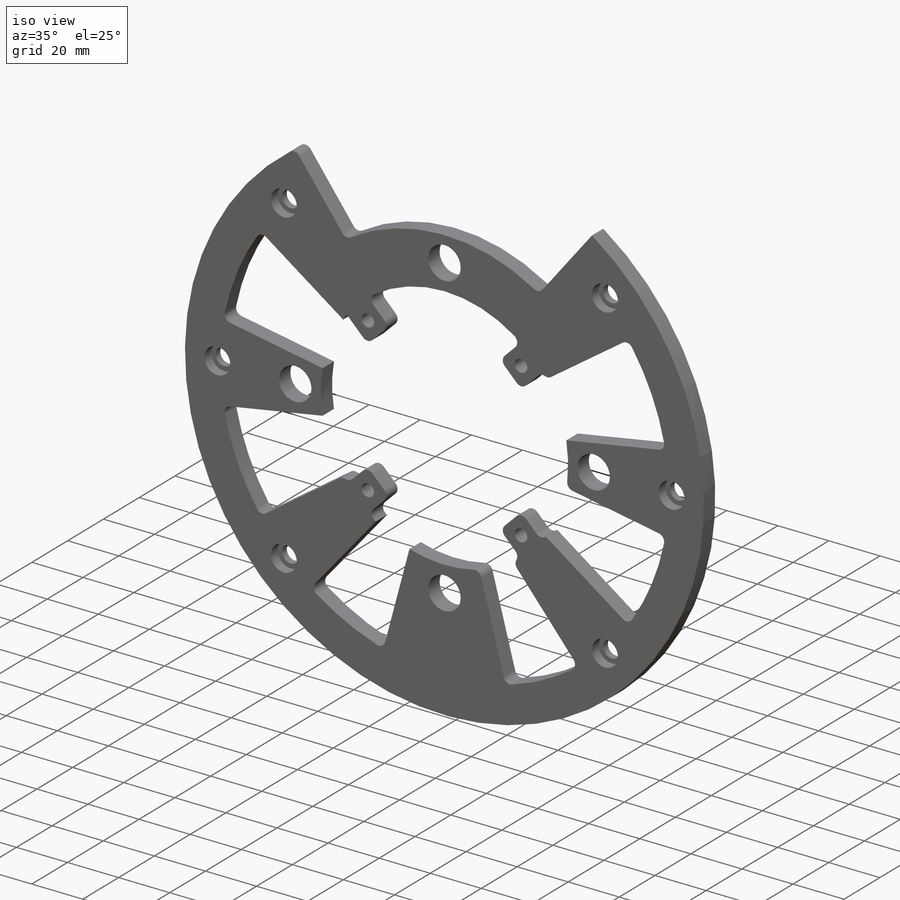
[diagram: iso view]
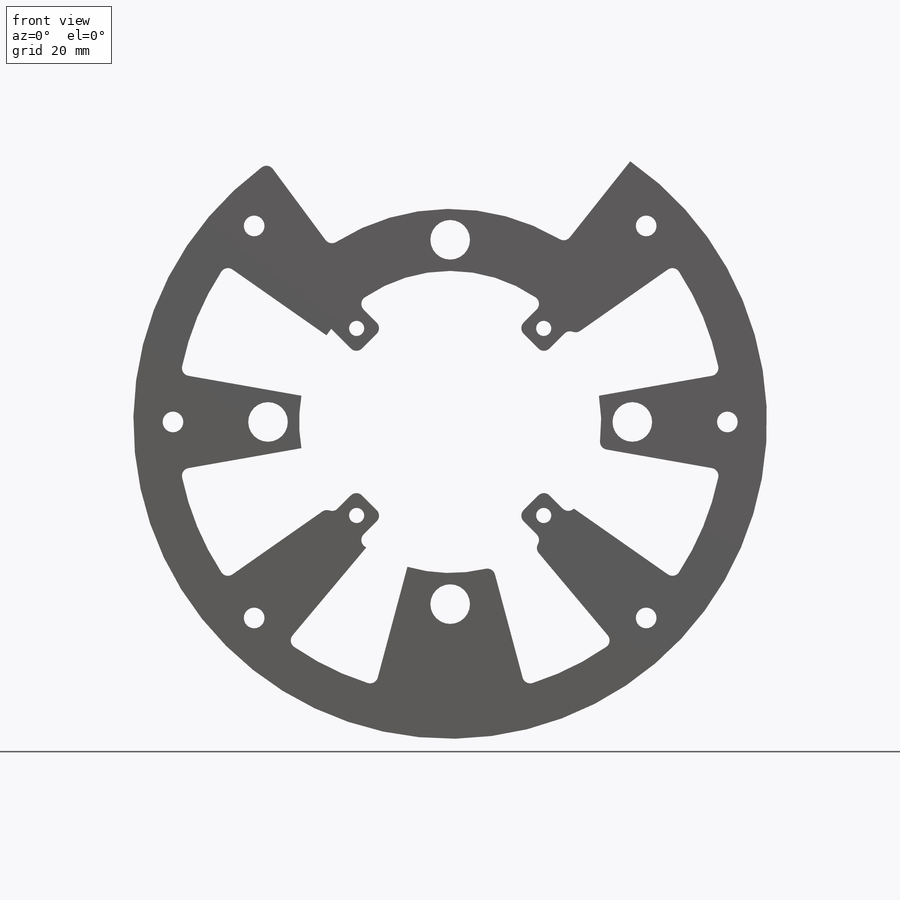
[diagram: front view]
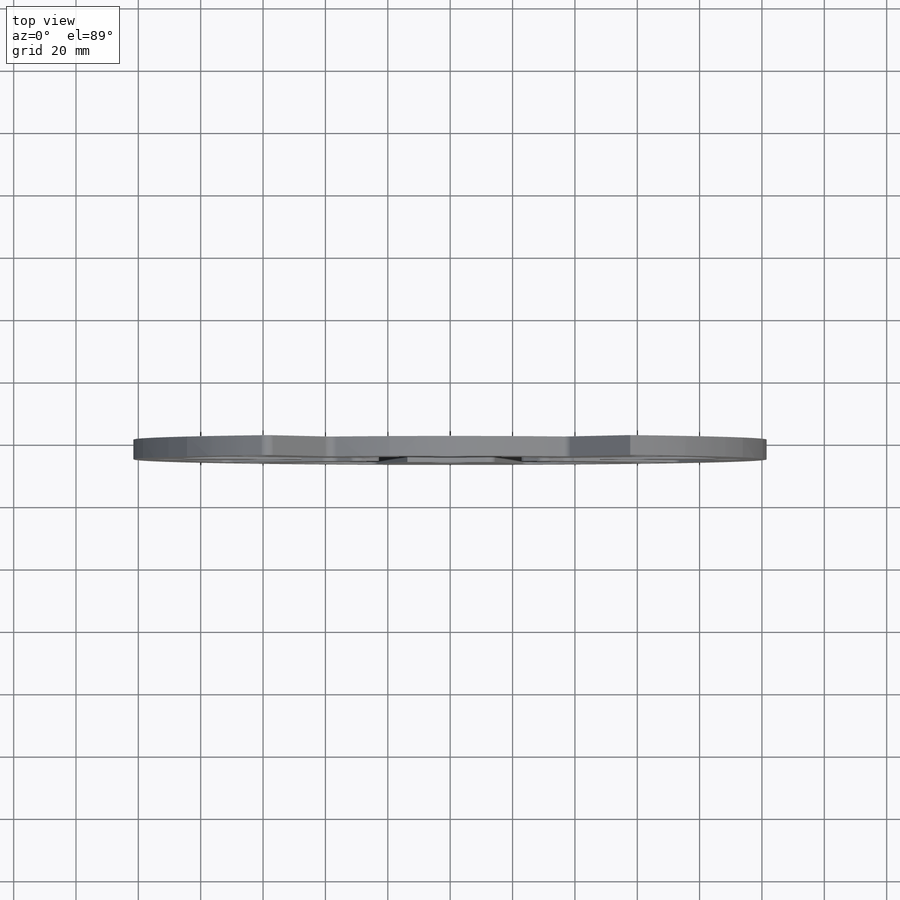
[diagram: top view]
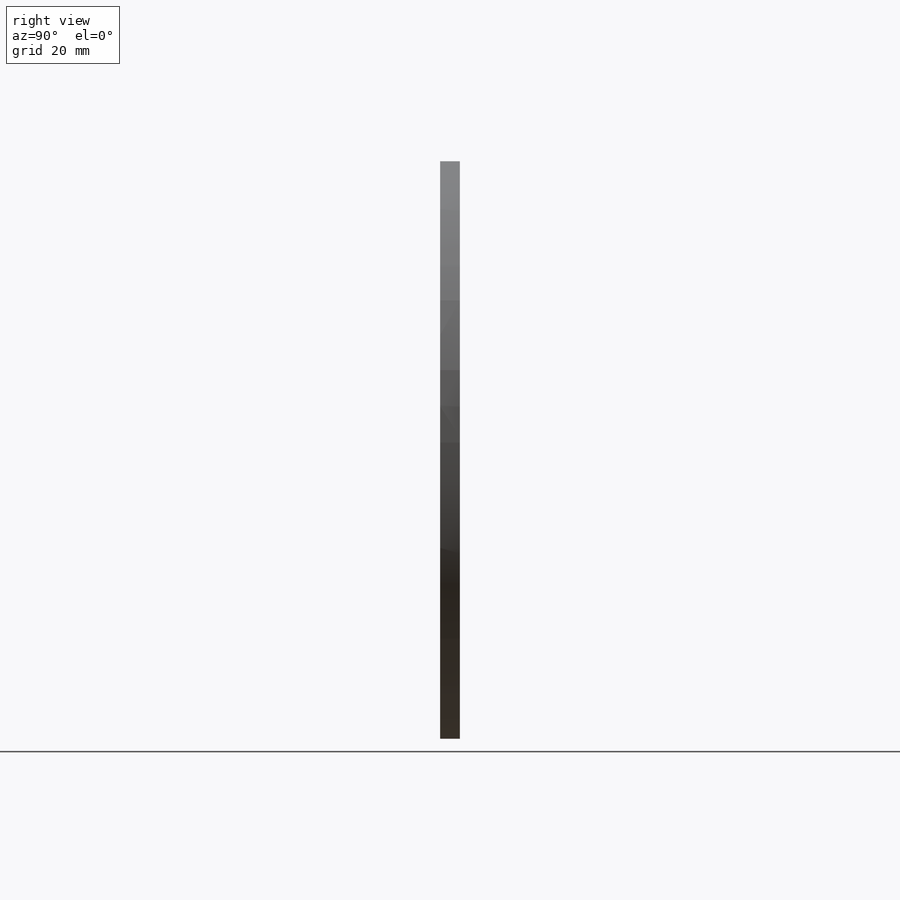
[diagram: right view]
SOLIDWORKS PART (.sldprt)
format: sldprt  version: not decoded by parser v0  size: 504,320 bytes
history: native  units: mm
features: sketch x8, fillet x5, extrude x2, cut_extrude x2, material x1, hole x1 (+11 scaffold rows collapsed)
feature tree (30):
  scaffold x11  (default folders/planes/origin — collapsed)
  material  "Material <not specified>"
  sketch  "Sketch1"
  extrude  "Extrude1"  Depth=6.35mm
  sketch  "Sketch4"
  hole  "CBORE for 1/4 Socket Head Cap Screw1"  Diameter=6.6294mm Depth=6.35mm
  sketch  "Sketch9"
  sketch  "Sketch8"  dims[hole-wizard template sketch: 41 standard entries collapsed; hole parameters kept: c12.Thru Hole Dia.=6.6294mm c12.Thru Hole Depth=6.35mm c12.C'Bore Dia.=10.16mm c12.C'Bore Depth=3.81mm]
  sketch  "Sketch11"  dims[D1=~20.478678mm]
  sketch  "Sketch12"  dims[D1=12.7mm]
  cut_extrude  "Cut-Extrude2"  [1 undecoded]
  sketch  "Sketch13"
  extrude  "Extrude2"  [1 undecoded]
  sketch  "Sketch14"  dims[c1.D5=~28.309162mm c1.D6=67.564mm c1.D1=~57.520212mm c2.D1=10.0deg c2.D2=~56.202193mm c3.D2=15.0deg c3.D3=~48.94258mm c4.D3=25.0deg c4.D4=~57.976805mm c5.D4=25.0deg c5.D5=~82.163358mm c6.D5=75.0deg]
  cut_extrude  "Cut-Extrude3"  Depth=6.35mm
  fillet  "Fillet1"  Radius=2.54mm
  fillet  "Fillet2"  Radius=2.54mm
  fillet  "Fillet3"  Radius=2.54mm
  fillet  "Fillet6"  Radius=2.54mm
  fillet  "Fillet9"  Radius=2.54mm
decode coverage: 12 of 18 modeling features carry decoded parameters
note: ~ marks probable driven/reference dimensions
note: 2 parameter values undecoded
note: suppression state not decoded; provenance and decode notes live in map.json
